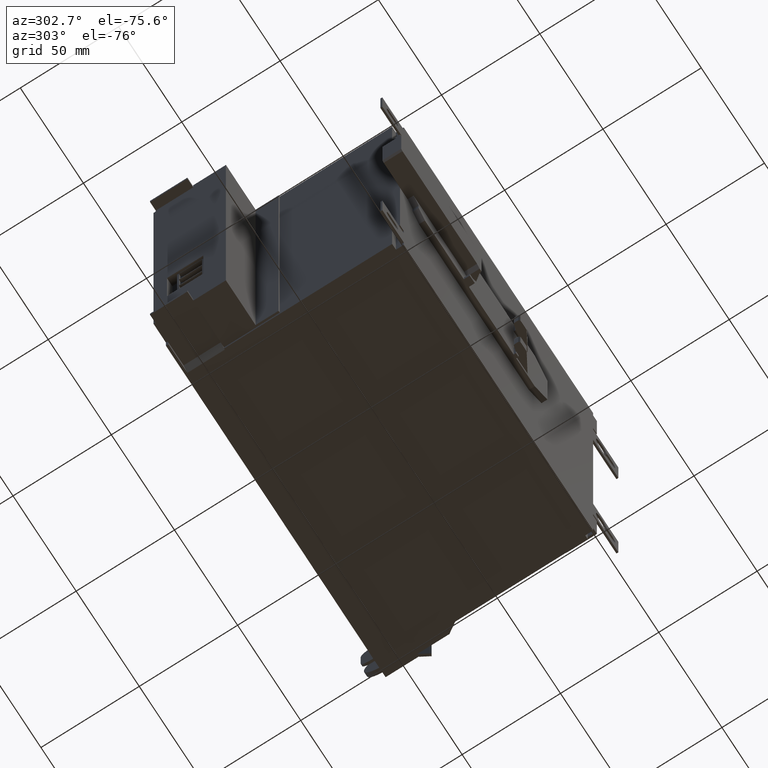
[diagram: clean part render]
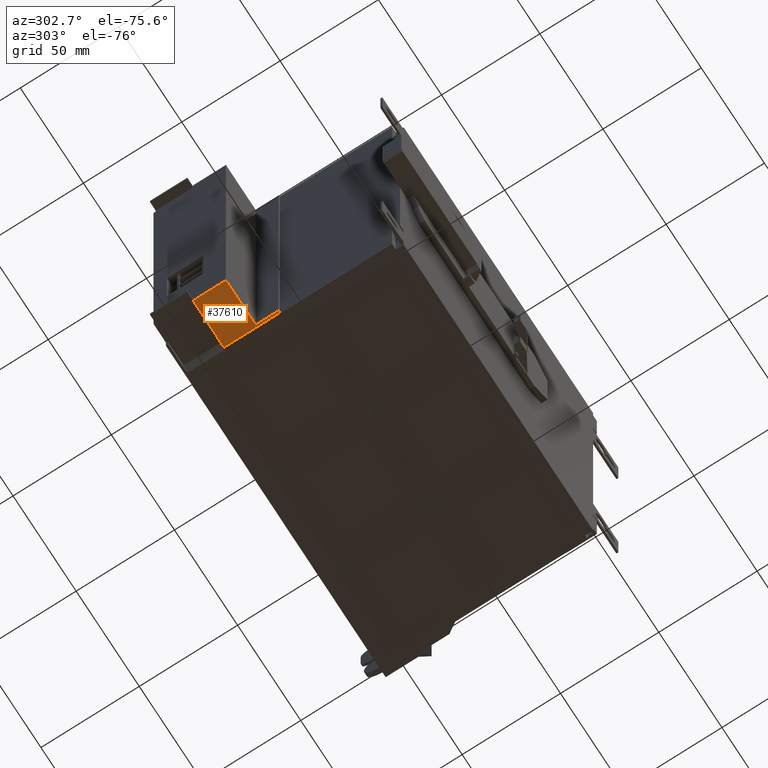
[diagram: same view with one face highlighted and labeled with its STEP entity id]
A machine part, auxiliary view. The second image highlights one B-rep face of the part: STEP entity #37610.
In plain terms, the highlighted planar face has unit normal (0, -0, -1).
Its self-contained STEP definition (entity closure, byte-faithful):
#1120=CARTESIAN_POINT('',(-107.5,88.5,1.));
#1130=VERTEX_POINT('',#1120);
#1160=CARTESIAN_POINT('',(-107.5,0.,1.));
#1170=DIRECTION('',(0.,-1.,0.));
#1180=VECTOR('',#1170,1.);
#1190=LINE('',#1160,#1180);
#1200=CARTESIAN_POINT('',(-107.5,60.15,1.));
#1210=VERTEX_POINT('',#1200);
#1220=EDGE_CURVE('',#1130,#1210,#1190,.T.);
#12450=CARTESIAN_POINT('',(-107.5,0.,25.5));
#12460=DIRECTION('',(0.,1.,0.));
#12470=VECTOR('',#12460,1.);
#12480=LINE('',#12450,#12470);
#12490=CARTESIAN_POINT('',(-107.5,71.8,25.5));
#12500=VERTEX_POINT('',#12490);
#12510=CARTESIAN_POINT('',(-107.5,88.5,25.5));
#12520=VERTEX_POINT('',#12510);
#12530=EDGE_CURVE('',#12500,#12520,#12480,.T.);
#14170=CARTESIAN_POINT('',(-107.5,71.8,2.));
#14180=VERTEX_POINT('',#14170);
#14210=CARTESIAN_POINT('',(-107.5,71.8,0.));
#14220=DIRECTION('',(0.,0.,1.));
#14230=VECTOR('',#14220,1.);
#14240=LINE('',#14210,#14230);
#14250=EDGE_CURVE('',#14180,#12500,#14240,.T.);
#14800=CARTESIAN_POINT('',(-107.5,60.15,2.));
#14810=VERTEX_POINT('',#14800);
#14840=CARTESIAN_POINT('',(-107.5,0.,2.));
#14850=DIRECTION('',(0.,-1.,0.));
#14860=VECTOR('',#14850,1.);
#14870=LINE('',#14840,#14860);
#14880=EDGE_CURVE('',#14180,#14810,#14870,.T.);
#15060=CARTESIAN_POINT('',(-107.5,60.15,1.));
#15070=DIRECTION('',(0.,0.,1.));
#15080=VECTOR('',#15070,1.);
#15090=LINE('',#15060,#15080);
#15100=EDGE_CURVE('',#1210,#14810,#15090,.T.);
#37350=CARTESIAN_POINT('',(-107.5,88.3,25.5));
#37360=DIRECTION('',(-1.,-0.,-0.));
#37370=DIRECTION('',(0.,0.,-1.));
#37380=AXIS2_PLACEMENT_3D('',#37350,#37360,#37370);
#37390=PLANE('',#37380);
#37400=ORIENTED_EDGE('',*,*,#14250,.T.);
#37410=ORIENTED_EDGE('',*,*,#14880,.F.);
#37420=ORIENTED_EDGE('',*,*,#15100,.T.);
#37430=ORIENTED_EDGE('',*,*,#1220,.T.);
#37440=CARTESIAN_POINT('',(-107.5,88.5,0.));
#37450=DIRECTION('',(0.,0.,-1.));
#37460=VECTOR('',#37450,1.);
#37470=LINE('',#37440,#37460);
#37480=CARTESIAN_POINT('',(-107.5,88.5,2.41421356237002));
#37490=VERTEX_POINT('',#37480);
#37500=EDGE_CURVE('',#37490,#1130,#37470,.T.);
#37510=ORIENTED_EDGE('',*,*,#37500,.T.);
#37520=CARTESIAN_POINT('',(-107.5,88.5,0.));
#37530=DIRECTION('',(0.,0.,1.));
#37540=VECTOR('',#37530,1.);
#37550=LINE('',#37520,#37540);
#37560=EDGE_CURVE('',#37490,#12520,#37550,.T.);
#37570=ORIENTED_EDGE('',*,*,#37560,.F.);
#37580=ORIENTED_EDGE('',*,*,#12530,.T.);
#37590=EDGE_LOOP('',(#37580,#37570,#37510,#37430,#37420,#37410,#37400));
#37600=FACE_OUTER_BOUND('',#37590,.T.);
#37610=ADVANCED_FACE('',(#37600),#37390,.T.);